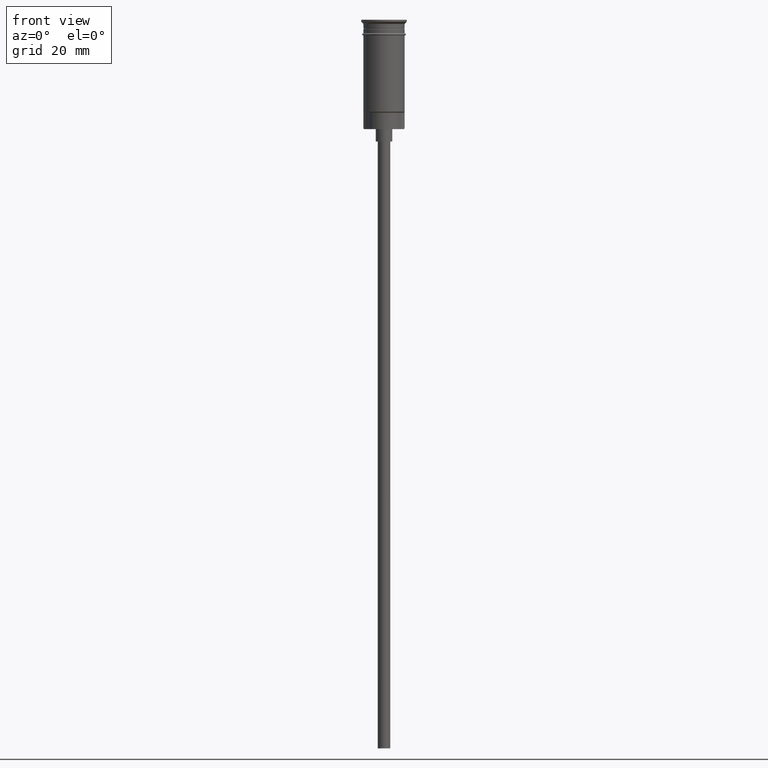
[diagram: clean part render]
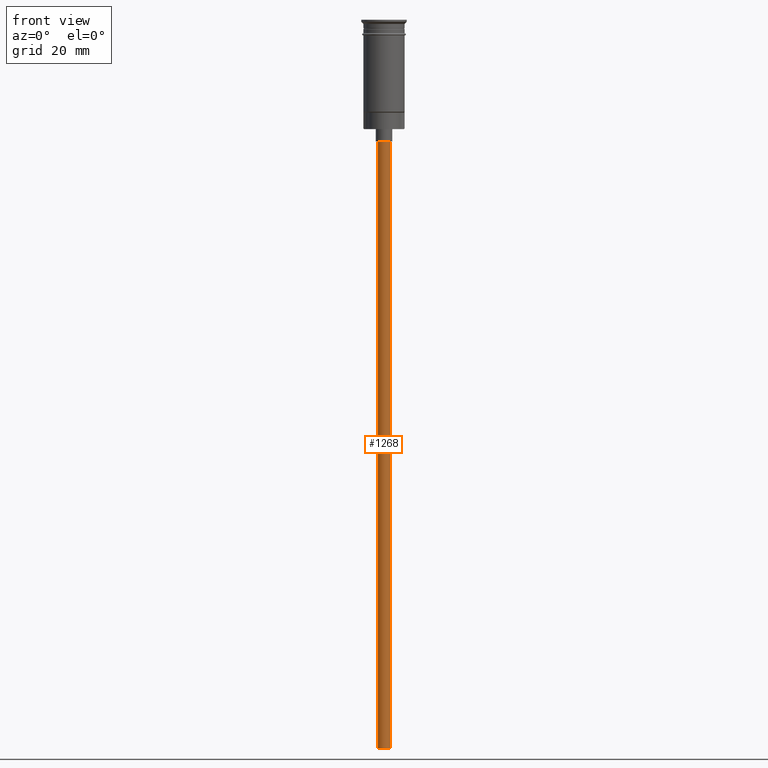
[diagram: same view with one face highlighted and labeled with its STEP entity id]
A machine part, front view. The second image highlights one B-rep face of the part: STEP entity #1268.
In plain terms, the highlighted cylindrical surface (edge-blend (fillet) strip) has radius 1.5 mm, axis along (-0, -0, 1).
Its self-contained STEP definition (entity closure, byte-faithful):
#59 = CARTESIAN_POINT ( 'NONE',  ( -1.500000000000000222, 1.836970198721030181E-16, -176.5000000000000000 ) ) ;
#69 = CARTESIAN_POINT ( 'NONE',  ( 0.000000000000000000, 0.000000000000000000, -29.50000000000000000 ) ) ;
#134 = EDGE_CURVE ( 'NONE', #442, #567, #195, .T. ) ;
#195 = CIRCLE ( 'NONE', #830, 1.500000000000000222 ) ;
#199 = VECTOR ( 'NONE', #1179, 1000.000000000000000 ) ;
#206 = CARTESIAN_POINT ( 'NONE',  ( 1.500000000000000222, 0.000000000000000000, -176.5000000000000000 ) ) ;
#228 = ORIENTED_EDGE ( 'NONE', *, *, #1312, .F. ) ;
#282 = DIRECTION ( 'NONE',  ( 0.000000000000000000, 0.000000000000000000, -1.000000000000000000 ) ) ;
#324 = CARTESIAN_POINT ( 'NONE',  ( 1.500000000000000222, 0.000000000000000000, -176.5000000000000000 ) ) ;
#399 = CARTESIAN_POINT ( 'NONE',  ( -1.500000000000000222, 1.836970198721030181E-16, -29.50000000000000000 ) ) ;
#442 = VERTEX_POINT ( 'NONE', #889 ) ;
#469 = ORIENTED_EDGE ( 'NONE', *, *, #1589, .T. ) ;
#485 = EDGE_CURVE ( 'NONE', #998, #706, #1341, .T. ) ;
#567 = VERTEX_POINT ( 'NONE', #399 ) ;
#574 = DIRECTION ( 'NONE',  ( -1.000000000000000000, 0.000000000000000000, 0.000000000000000000 ) ) ;
#592 = EDGE_LOOP ( 'NONE', ( #228, #1081, #469, #1064 ) ) ;
#606 = DIRECTION ( 'NONE',  ( 1.000000000000000000, 0.000000000000000000, 0.000000000000000000 ) ) ;
#672 = CARTESIAN_POINT ( 'NONE',  ( -1.500000000000000222, 1.836970198721030181E-16, -176.5000000000000000 ) ) ;
#706 = VERTEX_POINT ( 'NONE', #672 ) ;
#787 = DIRECTION ( 'NONE',  ( 0.000000000000000000, 0.000000000000000000, -1.000000000000000000 ) ) ;
#830 = AXIS2_PLACEMENT_3D ( 'NONE', #69, #787, #574 ) ;
#889 = CARTESIAN_POINT ( 'NONE',  ( 1.500000000000000222, 0.000000000000000000, -29.50000000000000000 ) ) ;
#953 = CYLINDRICAL_SURFACE ( 'NONE', #1166, 1.500000000000000222 ) ;
#998 = VERTEX_POINT ( 'NONE', #324 ) ;
#1064 = ORIENTED_EDGE ( 'NONE', *, *, #134, .T. ) ;
#1081 = ORIENTED_EDGE ( 'NONE', *, *, #485, .F. ) ;
#1085 = VECTOR ( 'NONE', #1519, 1000.000000000000000 ) ;
#1110 = DIRECTION ( 'NONE',  ( -1.000000000000000000, 0.000000000000000000, 0.000000000000000000 ) ) ;
#1131 = CARTESIAN_POINT ( 'NONE',  ( 0.000000000000000000, 0.000000000000000000, -176.5000000000000000 ) ) ;
#1166 = AXIS2_PLACEMENT_3D ( 'NONE', #1581, #1444, #606 ) ;
#1179 = DIRECTION ( 'NONE',  ( -0.000000000000000000, -0.000000000000000000, 1.000000000000000000 ) ) ;
#1268 = ADVANCED_FACE ( 'NONE', ( #1333 ), #953, .T. ) ;
#1297 = LINE ( 'NONE', #59, #1085 ) ;
#1302 = LINE ( 'NONE', #206, #199 ) ;
#1312 = EDGE_CURVE ( 'NONE', #706, #567, #1297, .T. ) ;
#1333 = FACE_OUTER_BOUND ( 'NONE', #592, .T. ) ;
#1341 = CIRCLE ( 'NONE', #1552, 1.500000000000000222 ) ;
#1444 = DIRECTION ( 'NONE',  ( -0.000000000000000000, -0.000000000000000000, 1.000000000000000000 ) ) ;
#1519 = DIRECTION ( 'NONE',  ( -0.000000000000000000, -0.000000000000000000, 1.000000000000000000 ) ) ;
#1552 = AXIS2_PLACEMENT_3D ( 'NONE', #1131, #282, #1110 ) ;
#1581 = CARTESIAN_POINT ( 'NONE',  ( 0.000000000000000000, 0.000000000000000000, -176.5000000000000000 ) ) ;
#1589 = EDGE_CURVE ( 'NONE', #998, #442, #1302, .T. ) ;